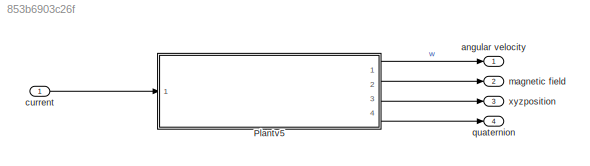
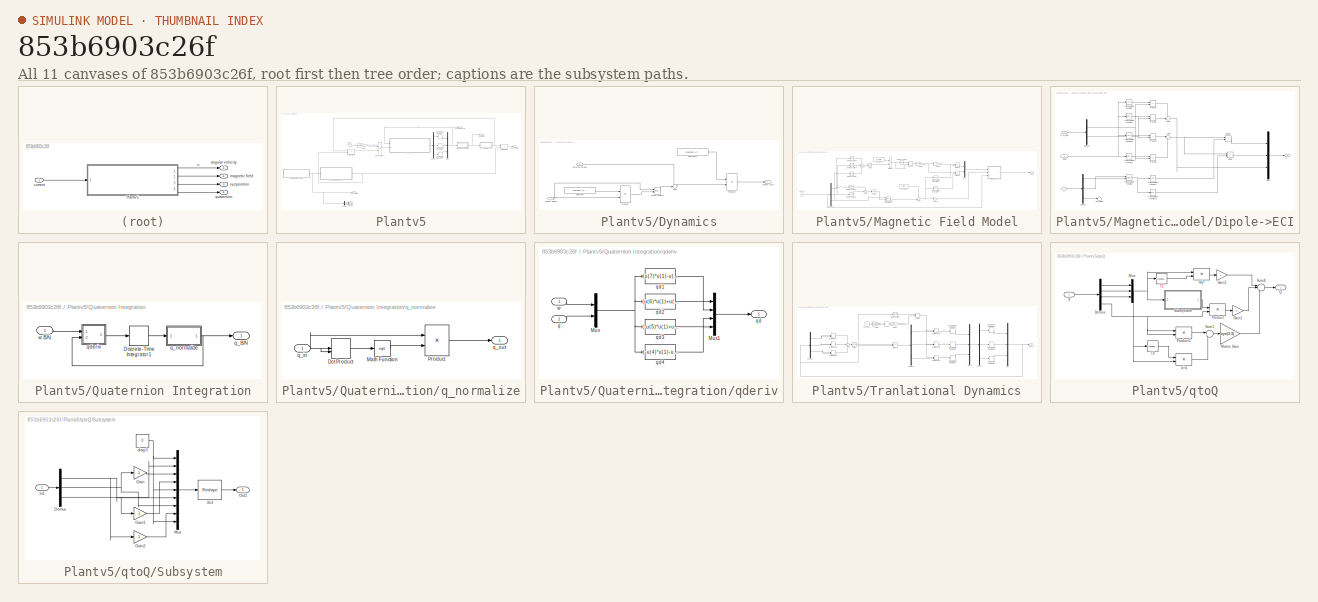
[diagram: thumbnail index - all 11 canvases of the model, root first then tree order]
MODEL slx_853b6903c26f
KIND model
CONFIG AbsTol = auto
CONFIG EnableMultiTasking = off
CONFIG FixedStep = .1
CONFIG MaxStep = 4.0
CONFIG MinStep = .001
CONFIG RelTol = 1e-6
CONFIG SampleTimeConstraint = Unconstrained
CONFIG Solver = FixedStepAuto
CONFIG SolverName = FixedStepAuto
CONFIG StartTime = 0.0
CONFIG StopTime = 6000
BLOCK [SubSystem] Plantv5
  Ports = [1, 4]
  RTWSystemCode = Inline
  RequestExecContextInheritance = off
  Tag = starshotsimv5
  TreatAsAtomicUnit = on
  Variant = off
BLOCK [Reference] Plantv5/Cross Product  REF=vrlib/Utilities/Cross Product
  Ports = [2, 1]
  SourceBlock = vrlib/Utilities/Cross Product
  SourceProductBaseCode = VR
  SourceProductName = Simulink 3D Animation
  SourceType = Cross Product
BLOCK [Demux] Plantv5/Demux
  DisplayOption = bar
  Outputs = 3
  Ports = [1, 3]
BLOCK [Demux] Plantv5/Demux4
  DisplayOption = bar
  Outputs = 3
  Ports = [1, 3]
BLOCK [DiscreteIntegrator] Plantv5/Discrete-Time Integrator
  ICPrevOutput = DiscIntNeverNeededParam
  ICPrevScaledInput = DiscIntNeverNeededParam
  InitialCondition = starshot.IC.w(1)
  InitialConditionSetting = State (most efficient)
  Ports = [1, 1]
  SampleTime = -1
BLOCK [DiscreteIntegrator] Plantv5/Discrete-Time Integrator1
  ICPrevOutput = DiscIntNeverNeededParam
  ICPrevScaledInput = DiscIntNeverNeededParam
  InitialCondition = starshot.IC.w(2)
  InitialConditionSetting = State (most efficient)
  Ports = [1, 1]
  SampleTime = -1
BLOCK [DiscreteIntegrator] Plantv5/Discrete-Time Integrator2
  ICPrevOutput = DiscIntNeverNeededParam
  ICPrevScaledInput = DiscIntNeverNeededParam
  InitialCondition = starshot.IC.w(3)
  InitialConditionSetting = State (most efficient)
  Ports = [1, 1]
  SampleTime = -1
BLOCK [SubSystem] Plantv5/Dynamics
  Ports = [2, 1]
  RequestExecContextInheritance = off
  TreatAsAtomicUnit = on
  Variant = off
BLOCK [Outport] Plantv5/Dynamics/Angular Accel
  IconDisplay = Port number
BLOCK [Inport] Plantv5/Dynamics/Angular Velocity
  IconDisplay = Port number
BLOCK [Constant] Plantv5/Dynamics/Constant
  Value = starshot.IC.massproperties.I
BLOCK [Constant] Plantv5/Dynamics/Constant1
  Value = starshot.IC.massproperties.Iinv
BLOCK [Reference] Plantv5/Dynamics/Cross Product  REF=vrlib/Utilities/Cross Product
  Ports = [2, 1]
  SourceBlock = vrlib/Utilities/Cross Product
  SourceProductBaseCode = VR
  SourceProductName = Simulink 3D Animation
  SourceType = Cross Product
BLOCK [Inport] Plantv5/Dynamics/External Torque
  IconDisplay = Port number
  Port = 2
BLOCK [Product] Plantv5/Dynamics/Product
  InputSameDT = off
  Multiplication = Matrix(*)
  OutDataTypeStr = Inherit: Inherit via internal rule
  Ports = [2, 1]
  RndMeth = Floor
  SaturateOnIntegerOverflow = off
BLOCK [Product] Plantv5/Dynamics/Product1
  InputSameDT = off
  Multiplication = Matrix(*)
  OutDataTypeStr = Inherit: Inherit via internal rule
  Ports = [2, 1]
  RndMeth = Floor
  SaturateOnIntegerOverflow = off
BLOCK [Sum] Plantv5/Dynamics/Sum
  IconShape = round
  InputSameDT = off
  Inputs = +-
  OutDataTypeStr = Inherit: Inherit via internal rule
  Ports = [2, 1]
  SaturateOnIntegerOverflow = off
BLOCK [Gain] Plantv5/Gain
  Gain = starshot.magnetorq.A*starshot.magnetorq.n
  OutDataTypeStr = Inherit: Inherit via internal rule
  ParamDataTypeStr = Inherit: Inherit via internal rule
  SaturateOnIntegerOverflow = off
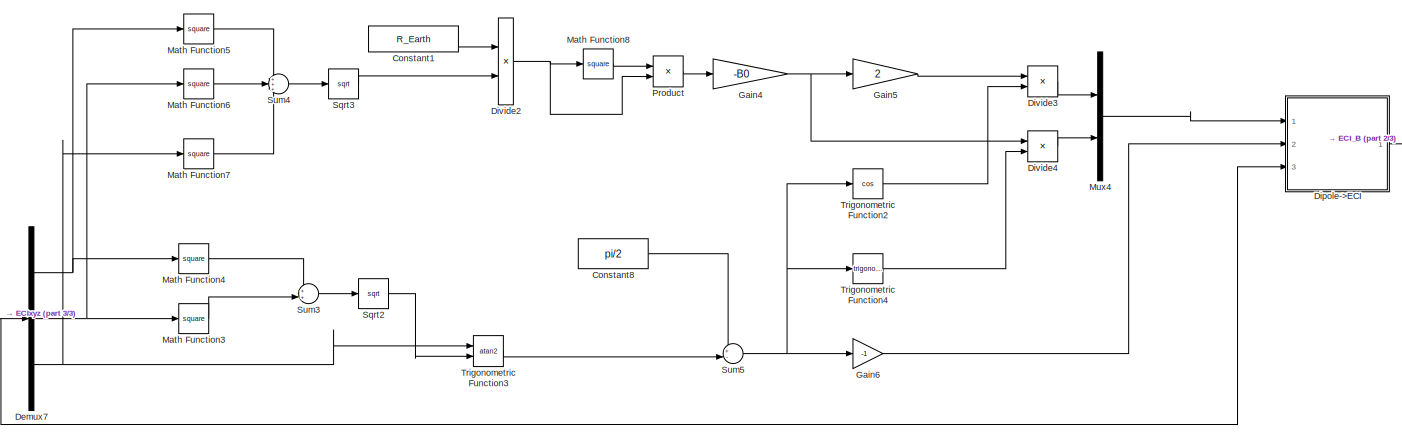
[diagram: Plantv5/Magnetic Field Model - part 1/3, most of the canvas]
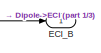
[diagram: Plantv5/Magnetic Field Model - part 2/3, middle right region]
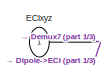
[diagram: Plantv5/Magnetic Field Model - part 3/3, bottom left region]
BLOCK [SubSystem] Plantv5/Magnetic Field Model
  Ports = [1, 1]
  RequestExecContextInheritance = off
  TreatAsAtomicUnit = on
  Variant = off
BLOCK [Constant] Plantv5/Magnetic Field Model/Constant1
  Value = R_Earth
BLOCK [Constant] Plantv5/Magnetic Field Model/Constant8
  Value = pi/2
BLOCK [Demux] Plantv5/Magnetic Field Model/Demux7
  DisplayOption = bar
  Outputs = 3
  Ports = [1, 3]
BLOCK [SubSystem] Plantv5/Magnetic Field Model/Dipole->ECI
  Ports = [3, 1]
  RequestExecContextInheritance = off
  TreatAsAtomicUnit = on
  Variant = off
BLOCK [Inport] Plantv5/Magnetic Field Model/Dipole->ECI/-theta
  IconDisplay = Port number
  Port = 2
BLOCK [Outport] Plantv5/Magnetic Field Model/Dipole->ECI/B
  IconDisplay = Port number
BLOCK [Inport] Plantv5/Magnetic Field Model/Dipole->ECI/B_r,B_theta
  IconDisplay = Port number
BLOCK [Demux] Plantv5/Magnetic Field Model/Dipole->ECI/Demux
  DisplayOption = bar
  Outputs = 3
  Ports = [1, 3]
BLOCK [Demux] Plantv5/Magnetic Field Model/Dipole->ECI/Demux8
  DisplayOption = bar
  Outputs = 2
  Ports = [1, 2]
BLOCK [Product] Plantv5/Magnetic Field Model/Dipole->ECI/Divide
  InputSameDT = off
  Inputs = **
  OutDataTypeStr = Inherit: Inherit via internal rule
  Ports = [2, 1]
  RndMeth = Floor
  SaturateOnIntegerOverflow = off
BLOCK [Product] Plantv5/Magnetic Field Model/Dipole->ECI/Divide1
  InputSameDT = off
  Inputs = **
  OutDataTypeStr = Inherit: Inherit via internal rule
  Ports = [2, 1]
  RndMeth = Floor
  SaturateOnIntegerOverflow = off
BLOCK [Mux] Plantv5/Magnetic Field Model/Dipole->ECI/Mux
  DisplayOption = bar
  Inputs = 3
  Ports = [3, 1]
BLOCK [Product] Plantv5/Magnetic Field Model/Dipole->ECI/Product1
  InputSameDT = off
  OutDataTypeStr = Inherit: Inherit via internal rule
  Ports = [2, 1]
  RndMeth = Floor
  SaturateOnIntegerOverflow = off
BLOCK [Product] Plantv5/Magnetic Field Model/Dipole->ECI/Product2
  InputSameDT = off
  OutDataTypeStr = Inherit: Inherit via internal rule
  Ports = [2, 1]
  RndMeth = Floor
  SaturateOnIntegerOverflow = off
BLOCK [Product] Plantv5/Magnetic Field Model/Dipole->ECI/Product3
  InputSameDT = off
  OutDataTypeStr = Inherit: Inherit via internal rule
  Ports = [2, 1]
  RndMeth = Floor
  SaturateOnIntegerOverflow = off
BLOCK [Product] Plantv5/Magnetic Field Model/Dipole->ECI/Product4
  InputSameDT = off
  OutDataTypeStr = Inherit: Inherit via internal rule
  Ports = [2, 1]
  RndMeth = Floor
  SaturateOnIntegerOverflow = off
BLOCK [Sum] Plantv5/Magnetic Field Model/Dipole->ECI/Sum5
  IconShape = round
  InputSameDT = off
  Inputs = +-|
  OutDataTypeStr = Inherit: Inherit via internal rule
  Ports = [2, 1]
  SaturateOnIntegerOverflow = off
BLOCK [Sum] Plantv5/Magnetic Field Model/Dipole->ECI/Sum6
  IconShape = round
  InputSameDT = off
  Inputs = |++
  OutDataTypeStr = Inherit: Inherit via internal rule
  Ports = [2, 1]
  SaturateOnIntegerOverflow = off
BLOCK [Terminator] Plantv5/Magnetic Field Model/Dipole->ECI/Terminator
BLOCK [Trigonometry] Plantv5/Magnetic Field Model/Dipole->ECI/Trigonometric Function
  Operator = atan2
  Ports = [2, 1]
BLOCK [Trigonometry] Plantv5/Magnetic Field Model/Dipole->ECI/Trigonometric Function1
  Operator = cos
  Ports = [1, 1]
BLOCK [Trigonometry] Plantv5/Magnetic Field Model/Dipole->ECI/Trigonometric Function2
  Ports = [1, 1]
BLOCK [Trigonometry] Plantv5/Magnetic Field Model/Dipole->ECI/Trigonometric Function5
  Operator = cos
  Ports = [1, 1]
BLOCK [Trigonometry] Plantv5/Magnetic Field Model/Dipole->ECI/Trigonometric Function6
  Ports = [1, 1]
BLOCK [Trigonometry] Plantv5/Magnetic Field Model/Dipole->ECI/Trigonometric Function7
  Ports = [1, 1]
BLOCK [Trigonometry] Plantv5/Magnetic Field Model/Dipole->ECI/Trigonometric Function8
  Operator = cos
  Ports = [1, 1]
BLOCK [Inport] Plantv5/Magnetic Field Model/Dipole->ECI/r
  IconDisplay = Port number
  Port = 3
BLOCK [Product] Plantv5/Magnetic Field Model/Divide2
  InputSameDT = off
  Inputs = */
  OutDataTypeStr = Inherit: Inherit via internal rule
  Ports = [2, 1]
  RndMeth = Floor
  SaturateOnIntegerOverflow = off
BLOCK [Product] Plantv5/Magnetic Field Model/Divide3
  InputSameDT = off
  Inputs = **
  OutDataTypeStr = Inherit: Inherit via internal rule
  Ports = [2, 1]
  RndMeth = Floor
  SaturateOnIntegerOverflow = off
BLOCK [Product] Plantv5/Magnetic Field Model/Divide4
  InputSameDT = off
  Inputs = **
  OutDataTypeStr = Inherit: Inherit via internal rule
  Ports = [2, 1]
  RndMeth = Floor
  SaturateOnIntegerOverflow = off
BLOCK [Outport] Plantv5/Magnetic Field Model/ECI_B
  IconDisplay = Port number
BLOCK [Inport] Plantv5/Magnetic Field Model/ECIxyz
  IconDisplay = Port number
BLOCK [Gain] Plantv5/Magnetic Field Model/Gain4
  Gain = -B0
  OutDataTypeStr = Inherit: Inherit via internal rule
  ParamDataTypeStr = Inherit: Inherit via internal rule
  SaturateOnIntegerOverflow = off
BLOCK [Gain] Plantv5/Magnetic Field Model/Gain5
  Gain = 2
  OutDataTypeStr = Inherit: Inherit via internal rule
  ParamDataTypeStr = Inherit: Inherit via internal rule
  SaturateOnIntegerOverflow = off
BLOCK [Gain] Plantv5/Magnetic Field Model/Gain6
  Gain = -1
  OutDataTypeStr = Inherit: Inherit via internal rule
  ParamDataTypeStr = Inherit: Inherit via internal rule
  SaturateOnIntegerOverflow = off
BLOCK [Math] Plantv5/Magnetic Field Model/Math Function3
  Operator = square
  Ports = [1, 1]
BLOCK [Math] Plantv5/Magnetic Field Model/Math Function4
  Operator = square
  Ports = [1, 1]
BLOCK [Math] Plantv5/Magnetic Field Model/Math Function5
  Operator = square
  Ports = [1, 1]
BLOCK [Math] Plantv5/Magnetic Field Model/Math Function6
  Operator = square
  Ports = [1, 1]
BLOCK [Math] Plantv5/Magnetic Field Model/Math Function7
  Operator = square
  Ports = [1, 1]
BLOCK [Math] Plantv5/Magnetic Field Model/Math Function8
  Operator = square
  Ports = [1, 1]
BLOCK [Mux] Plantv5/Magnetic Field Model/Mux4
  DisplayOption = bar
  Inputs = 2
  Ports = [2, 1]
BLOCK [Product] Plantv5/Magnetic Field Model/Product
  InputSameDT = off
  OutDataTypeStr = Inherit: Inherit via internal rule
  Ports = [2, 1]
  RndMeth = Floor
  SaturateOnIntegerOverflow = off
BLOCK [Sqrt] Plantv5/Magnetic Field Model/Sqrt2
BLOCK [Sqrt] Plantv5/Magnetic Field Model/Sqrt3
BLOCK [Sum] Plantv5/Magnetic Field Model/Sum3
  IconShape = round
  InputSameDT = off
  OutDataTypeStr = Inherit: Inherit via internal rule
  Ports = [2, 1]
  SaturateOnIntegerOverflow = off
BLOCK [Sum] Plantv5/Magnetic Field Model/Sum4
  IconShape = round
  InputSameDT = off
  Inputs = +++
  OutDataTypeStr = Inherit: Inherit via internal rule
  Ports = [3, 1]
  SaturateOnIntegerOverflow = off
BLOCK [Sum] Plantv5/Magnetic Field Model/Sum5
  IconShape = round
  InputSameDT = off
  Inputs = +-|
  OutDataTypeStr = Inherit: Inherit via internal rule
  Ports = [2, 1]
  SaturateOnIntegerOverflow = off
BLOCK [Trigonometry] Plantv5/Magnetic Field Model/Trigonometric Function2
  Operator = cos
  Ports = [1, 1]
BLOCK [Trigonometry] Plantv5/Magnetic Field Model/Trigonometric Function3
  Operator = atan2
  Ports = [2, 1]
BLOCK [Trigonometry] Plantv5/Magnetic Field Model/Trigonometric Function4
  Ports = [1, 1]
BLOCK [Product] Plantv5/Matrix Multiply
  InputSameDT = off
  Multiplication = Matrix(*)
  OutDataTypeStr = Inherit: Inherit via internal rule
  Ports = [2, 1]
  RndMeth = Floor
  SaturateOnIntegerOverflow = off
BLOCK [Product] Plantv5/Matrix Multiply1
  InputSameDT = off
  Multiplication = Matrix(*)
  OutDataTypeStr = Inherit: Inherit via internal rule
  Ports = [2, 1]
  RndMeth = Floor
  SaturateOnIntegerOverflow = off
BLOCK [Mux] Plantv5/Mux3
  DisplayOption = bar
  Inputs = 3
  Ports = [3, 1]
BLOCK [SubSystem] Plantv5/Quaternion Integration
  Ports = [1, 1]
  RequestExecContextInheritance = off
  Variant = off
BLOCK [DiscreteIntegrator] Plantv5/Quaternion Integration/Discrete-Time Integrator1
  ICPrevOutput = DiscIntNeverNeededParam
  ICPrevScaledInput = DiscIntNeverNeededParam
  InitialCondition = q0
  InitialConditionSetting = State (most efficient)
  Ports = [1, 1]
  SampleTime = -1
BLOCK [Outport] Plantv5/Quaternion Integration/q_B//N
  IconDisplay = Port number
BLOCK [SubSystem] Plantv5/Quaternion Integration/q_normalize
  Ports = [1, 1]
  RequestExecContextInheritance = off
  Variant = off
BLOCK [DotProduct] Plantv5/Quaternion Integration/q_normalize/Dot Product
  OutDataTypeStr = Inherit: Inherit via internal rule
BLOCK [Math] Plantv5/Quaternion Integration/q_normalize/Math Function
  Operator = sqrt
  Ports = [1, 1]
BLOCK [Product] Plantv5/Quaternion Integration/q_normalize/Product
  Inputs = */
  Ports = [2, 1]
  RndMeth = Floor
BLOCK [Inport] Plantv5/Quaternion Integration/q_normalize/q_in
  IconDisplay = Port number
  PortDimensions = 4
BLOCK [Outport] Plantv5/Quaternion Integration/q_normalize/q_out
  IconDisplay = Port number
BLOCK [SubSystem] Plantv5/Quaternion Integration/qderiv
  Ports = [2, 1]
  RequestExecContextInheritance = off
  Variant = off
BLOCK [Mux] Plantv5/Quaternion Integration/qderiv/Mux
  DisplayOption = bar
  Inputs = 2
  Ports = [2, 1]
BLOCK [Mux] Plantv5/Quaternion Integration/qderiv/Mux1
  DisplayOption = bar
  Ports = [4, 1]
BLOCK [Inport] Plantv5/Quaternion Integration/qderiv/q
  IconDisplay = Port number
  Port = 2
BLOCK [Outport] Plantv5/Quaternion Integration/qderiv/qd
  IconDisplay = Port number
BLOCK [Fcn] Plantv5/Quaternion Integration/qderiv/qd1
  Expr = (u(7)*u(1)-u(6)*u(2)+u(5)*u(3))/2
BLOCK [Fcn] Plantv5/Quaternion Integration/qderiv/qd2
  Expr = (u(6)*u(1)+u(7)*u(2)-u(4)*u(3))/2
BLOCK [Fcn] Plantv5/Quaternion Integration/qderiv/qd3
  Expr = (-u(5)*u(1)+u(4)*u(2)+u(7)*u(3))/2
BLOCK [Fcn] Plantv5/Quaternion Integration/qderiv/qd4
  Expr = (-u(4)*u(1)-u(5)*u(2)-u(6)*u(3))/2
BLOCK [Inport] Plantv5/Quaternion Integration/qderiv/w
  IconDisplay = Port number
BLOCK [Inport] Plantv5/Quaternion Integration/w B//N
  IconDisplay = Port number
BLOCK [Scope] Plantv5/Scope
  NumInputPorts = 3
  Ports = [3]
  ScopeSpecificationString = Simulink.scopes.TimeScopeBlockCfg('CurrentConfiguration', extmgr.ConfigurationSet(extmgr.Configuration('Core','General UI',true),extmgr.Configuration('Core','Source UI',true),extmgr.Configuration('Sources','WiredSimulink',true,'DataLoggingVariableName','ScopeData1'),extmgr.Configuration('Visuals','Time Domain',true,'SerializedDisplays',{struct('MinYLimReal','6403135.10671','MaxYLimReal','12371784....<+2772ch>
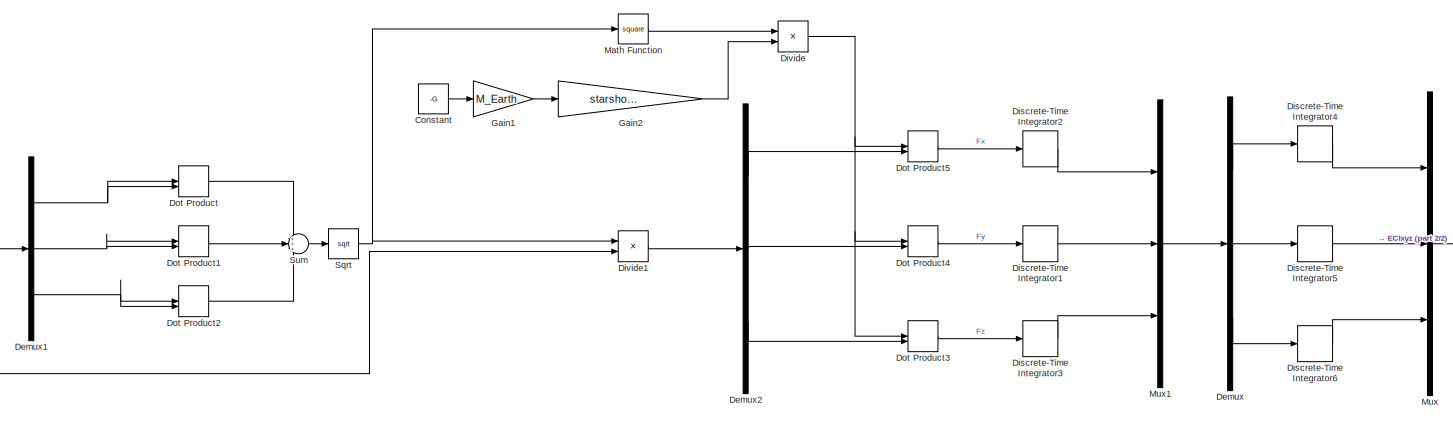
[diagram: Plantv5/Tranlational Dynamics - part 1/2, most of the canvas]
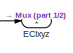
[diagram: Plantv5/Tranlational Dynamics - part 2/2, middle right region]
BLOCK [SubSystem] Plantv5/Tranlational Dynamics
  Ports = [0, 1]
  RequestExecContextInheritance = off
  TreatAsAtomicUnit = on
  Variant = off
BLOCK [Constant] Plantv5/Tranlational Dynamics/Constant
  Value = -G
BLOCK [Demux] Plantv5/Tranlational Dynamics/Demux
  DisplayOption = bar
  Outputs = 3
  Ports = [1, 3]
BLOCK [Demux] Plantv5/Tranlational Dynamics/Demux1
  DisplayOption = bar
  Outputs = 3
  Ports = [1, 3]
BLOCK [Demux] Plantv5/Tranlational Dynamics/Demux2
  DisplayOption = bar
  Outputs = 3
  Ports = [1, 3]
BLOCK [DiscreteIntegrator] Plantv5/Tranlational Dynamics/Discrete-Time Integrator1
  ICPrevOutput = DiscIntNeverNeededParam
  ICPrevScaledInput = DiscIntNeverNeededParam
  InitialCondition = starshot.IC.ydot
  InitialConditionSetting = State (most efficient)
  Ports = [1, 1]
  SampleTime = -1
BLOCK [DiscreteIntegrator] Plantv5/Tranlational Dynamics/Discrete-Time Integrator2
  ICPrevOutput = DiscIntNeverNeededParam
  ICPrevScaledInput = DiscIntNeverNeededParam
  InitialCondition = starshot.IC.xdot
  InitialConditionSetting = State (most efficient)
  Ports = [1, 1]
  SampleTime = -1
BLOCK [DiscreteIntegrator] Plantv5/Tranlational Dynamics/Discrete-Time Integrator3
  ICPrevOutput = DiscIntNeverNeededParam
  ICPrevScaledInput = DiscIntNeverNeededParam
  InitialCondition = starshot.IC.zdot
  InitialConditionSetting = State (most efficient)
  Ports = [1, 1]
  SampleTime = -1
BLOCK [DiscreteIntegrator] Plantv5/Tranlational Dynamics/Discrete-Time Integrator4
  ICPrevOutput = DiscIntNeverNeededParam
  ICPrevScaledInput = DiscIntNeverNeededParam
  InitialCondition = starshot.IC.x
  InitialConditionSetting = State (most efficient)
  Ports = [1, 1]
  SampleTime = -1
BLOCK [DiscreteIntegrator] Plantv5/Tranlational Dynamics/Discrete-Time Integrator5
  ICPrevOutput = DiscIntNeverNeededParam
  ICPrevScaledInput = DiscIntNeverNeededParam
  InitialCondition = starshot.IC.y
  InitialConditionSetting = State (most efficient)
  Ports = [1, 1]
  SampleTime = -1
BLOCK [DiscreteIntegrator] Plantv5/Tranlational Dynamics/Discrete-Time Integrator6
  ICPrevOutput = DiscIntNeverNeededParam
  ICPrevScaledInput = DiscIntNeverNeededParam
  InitialCondition = starshot.IC.z
  InitialConditionSetting = State (most efficient)
  Ports = [1, 1]
  SampleTime = -1
BLOCK [Product] Plantv5/Tranlational Dynamics/Divide
  InputSameDT = off
  Inputs = /*
  OutDataTypeStr = Inherit: Inherit via internal rule
  Ports = [2, 1]
  RndMeth = Floor
  SaturateOnIntegerOverflow = off
BLOCK [Product] Plantv5/Tranlational Dynamics/Divide1
  InputSameDT = off
  Inputs = /*
  OutDataTypeStr = Inherit: Inherit via internal rule
  Ports = [2, 1]
  RndMeth = Floor
  SaturateOnIntegerOverflow = off
BLOCK [DotProduct] Plantv5/Tranlational Dynamics/Dot Product
  OutDataTypeStr = Inherit: Inherit via internal rule
BLOCK [DotProduct] Plantv5/Tranlational Dynamics/Dot Product1
  OutDataTypeStr = Inherit: Inherit via internal rule
BLOCK [DotProduct] Plantv5/Tranlational Dynamics/Dot Product2
  OutDataTypeStr = Inherit: Inherit via internal rule
BLOCK [DotProduct] Plantv5/Tranlational Dynamics/Dot Product3
  OutDataTypeStr = Inherit: Inherit via internal rule
BLOCK [DotProduct] Plantv5/Tranlational Dynamics/Dot Product4
  OutDataTypeStr = Inherit: Inherit via internal rule
BLOCK [DotProduct] Plantv5/Tranlational Dynamics/Dot Product5
  OutDataTypeStr = Inherit: Inherit via internal rule
BLOCK [Outport] Plantv5/Tranlational Dynamics/ECIxyz
  IconDisplay = Port number
BLOCK [Gain] Plantv5/Tranlational Dynamics/Gain1
  Gain = M_Earth
  OutDataTypeStr = Inherit: Inherit via internal rule
  ParamDataTypeStr = Inherit: Inherit via internal rule
  SaturateOnIntegerOverflow = off
BLOCK [Gain] Plantv5/Tranlational Dynamics/Gain2
  Gain = starshot.IC.massproperties.m
  OutDataTypeStr = Inherit: Inherit via internal rule
  ParamDataTypeStr = Inherit: Inherit via internal rule
  SaturateOnIntegerOverflow = off
BLOCK [Math] Plantv5/Tranlational Dynamics/Math Function
  Operator = square
  Ports = [1, 1]
BLOCK [Mux] Plantv5/Tranlational Dynamics/Mux
  DisplayOption = bar
  Inputs = 3
  Ports = [3, 1]
BLOCK [Mux] Plantv5/Tranlational Dynamics/Mux1
  DisplayOption = bar
  Inputs = 3
  Ports = [3, 1]
BLOCK [Sqrt] Plantv5/Tranlational Dynamics/Sqrt
BLOCK [Sum] Plantv5/Tranlational Dynamics/Sum
  IconShape = round
  InputSameDT = off
  Inputs = +++
  OutDataTypeStr = Inherit: Inherit via internal rule
  Ports = [3, 1]
  SaturateOnIntegerOverflow = off
BLOCK [Outport] Plantv5/angular velocity
  IconDisplay = Port number
BLOCK [Inport] Plantv5/current
  IconDisplay = Port number
BLOCK [Outport] Plantv5/magnetic field
  IconDisplay = Port number
  Port = 2
BLOCK [SubSystem] Plantv5/qtoQ
  Ports = [1, 1]
  RequestExecContextInheritance = off
  TreatAsAtomicUnit = on
  Variant = off
BLOCK [Demux] Plantv5/qtoQ/Demux
  Ports = [1, 4]
BLOCK [Gain] Plantv5/qtoQ/Gain1
  Gain = 2
BLOCK [Gain] Plantv5/qtoQ/Gain2
  Gain = 2
BLOCK [Gain] Plantv5/qtoQ/Matrix Gain
  Gain = eye(3,3)
BLOCK [Mux] Plantv5/qtoQ/Mux
  DisplayOption = bar
  Inputs = 3
  Ports = [3, 1]
BLOCK [Product] Plantv5/qtoQ/Product
  Ports = [2, 1]
  RndMeth = Floor
BLOCK [Product] Plantv5/qtoQ/Product1
  Ports = [2, 1]
  RndMeth = Floor
BLOCK [Outport] Plantv5/qtoQ/Q
  IconDisplay = Port number
BLOCK [SubSystem] Plantv5/qtoQ/Subsystem
  Ports = [1, 1]
  RequestExecContextInheritance = off
  Variant = off
BLOCK [Reshape] Plantv5/qtoQ/Subsystem/3x3
  OutputDimensionality = Customize
  OutputDimensions = [3,3]
  Ports = [1, 1]
BLOCK [Demux] Plantv5/qtoQ/Subsystem/Demux
  Outputs = 3
  Ports = [1, 3]
BLOCK [Gain] Plantv5/qtoQ/Subsystem/Gain
  Gain = -1
BLOCK [Gain] Plantv5/qtoQ/Subsystem/Gain1
  Gain = -1
BLOCK [Gain] Plantv5/qtoQ/Subsystem/Gain2
  Gain = -1
BLOCK [Inport] Plantv5/qtoQ/Subsystem/In1
  IconDisplay = Port number
BLOCK [Mux] Plantv5/qtoQ/Subsystem/Mux
  DisplayOption = bar
  Inputs = 9
  Ports = [9, 1]
BLOCK [Outport] Plantv5/qtoQ/Subsystem/Out1
  IconDisplay = Port number
BLOCK [Constant] Plantv5/qtoQ/Subsystem/diag 0 
  Value = 0
BLOCK [Sum] Plantv5/qtoQ/Sum1
  IconShape = round
  Inputs = |+-
  Ports = [2, 1]
BLOCK [Sum] Plantv5/qtoQ/Sum8
  IconShape = round
  Inputs = |+-+
  Ports = [3, 1]
BLOCK [Math] Plantv5/qtoQ/T1
  Operator = transpose
  Ports = [1, 1]
BLOCK [Math] Plantv5/qtoQ/T2
  Operator = transpose
  Ports = [1, 1]
BLOCK [Inport] Plantv5/qtoQ/q
  IconDisplay = Port number
BLOCK [Product] Plantv5/qtoQ/qTq
  Multiplication = Matrix(*)
  Ports = [2, 1]
  RndMeth = Floor
BLOCK [Product] Plantv5/qtoQ/qqT
  Multiplication = Matrix(*)
  Ports = [2, 1]
  RndMeth = Floor
BLOCK [Outport] Plantv5/quaternion
  IconDisplay = Port number
  Port = 4
BLOCK [Outport] Plantv5/xyzposition
  IconDisplay = Port number
  Port = 3
BLOCK [Outport] angular velocity
  IconDisplay = Port number
  OutDataTypeStr = double
  PortDimensions = 3
  SampleTime = [0.10000000000000001 0]
  SignalType = real
  VarSizeSig = No
BLOCK [Inport] current
  IconDisplay = Port number
  Interpolate = off
  OutDataTypeStr = double
  PortDimensions = 3
  SampleTime = [0.10000000000000001 0]
  SignalType = real
  VarSizeSig = No
BLOCK [Outport] magnetic field
  IconDisplay = Port number
  OutDataTypeStr = double
  Port = 2
  PortDimensions = 3
  SampleTime = [0.10000000000000001 0]
  SignalType = real
  VarSizeSig = No
BLOCK [Outport] quaternion
  IconDisplay = Port number
  OutDataTypeStr = double
  Port = 4
  PortDimensions = 4
  SampleTime = [0.10000000000000001 0]
  SignalType = real
  VarSizeSig = No
BLOCK [Outport] xyzposition
  IconDisplay = Port number
  OutDataTypeStr = double
  Port = 3
  PortDimensions = 3
  SampleTime = [0.10000000000000001 0]
  SignalType = real
  VarSizeSig = No
LINE Plantv5/Cross Product:1 -> Plantv5/Dynamics:2
LINE Plantv5/Demux4:1 -> Plantv5/Discrete-Time Integrator:1
LINE Plantv5/Demux4:2 -> Plantv5/Discrete-Time Integrator1:1
LINE Plantv5/Demux4:3 -> Plantv5/Discrete-Time Integrator2:1
LINE Plantv5/Demux:1 -> Plantv5/Scope:1
LINE Plantv5/Demux:2 -> Plantv5/Scope:2
LINE Plantv5/Demux:3 -> Plantv5/Scope:3
LINE Plantv5/Discrete-Time Integrator1:1 -> Plantv5/Mux3:2
LINE Plantv5/Discrete-Time Integrator2:1 -> Plantv5/Mux3:3
LINE Plantv5/Discrete-Time Integrator:1 -> Plantv5/Mux3:1
NET Plantv5/Dynamics/Angular Velocity:1 -> Plantv5/Dynamics/Cross Product:1, Plantv5/Dynamics/Product:2
LINE Plantv5/Dynamics/Constant1:1 -> Plantv5/Dynamics/Product1:1
LINE Plantv5/Dynamics/Constant:1 -> Plantv5/Dynamics/Product:1
LINE Plantv5/Dynamics/Cross Product:1 -> Plantv5/Dynamics/Sum:2
LINE Plantv5/Dynamics/External Torque:1 -> Plantv5/Dynamics/Sum:1
LINE Plantv5/Dynamics/Product1:1 -> Plantv5/Dynamics/Angular Accel:1
LINE Plantv5/Dynamics/Product:1 -> Plantv5/Dynamics/Cross Product:2
LINE Plantv5/Dynamics/Sum:1 -> Plantv5/Dynamics/Product1:2
LINE Plantv5/Dynamics:1 -> Plantv5/Demux4:1
LINE Plantv5/Gain:1 -> Plantv5/Cross Product:1
LINE Plantv5/Magnetic Field Model/Constant1:1 -> Plantv5/Magnetic Field Model/Divide2:1
LINE Plantv5/Magnetic Field Model/Constant8:1 -> Plantv5/Magnetic Field Model/Sum5:1
NET Plantv5/Magnetic Field Model/Demux7:1 -> Plantv5/Magnetic Field Model/Math Function4:1, Plantv5/Magnetic Field Model/Math Function5:1
NET Plantv5/Magnetic Field Model/Demux7:2 -> Plantv5/Magnetic Field Model/Math Function3:1, Plantv5/Magnetic Field Model/Math Function6:1
NET Plantv5/Magnetic Field Model/Demux7:3 -> Plantv5/Magnetic Field Model/Math Function7:1, Plantv5/Magnetic Field Model/Trigonometric Function3:1
NET Plantv5/Magnetic Field Model/Dipole->ECI/-theta:1 -> Plantv5/Magnetic Field Model/Dipole->ECI/Trigonometric Function5:1, Plantv5/Magnetic Field Model/Dipole->ECI/Trigonometric Function6:1, Plantv5/Magnetic Field Model/Dipole->ECI/Trigonometric Function7:1, Plantv5/Magnetic Field Model/Dipole->ECI/Trigonometric Function8:1
LINE Plantv5/Magnetic Field Model/Dipole->ECI/B_r,B_theta:1 -> Plantv5/Magnetic Field Model/Dipole->ECI/Demux8:1
NET Plantv5/Magnetic Field Model/Dipole->ECI/Demux8:1 -> Plantv5/Magnetic Field Model/Dipole->ECI/Product1:2, Plantv5/Magnetic Field Model/Dipole->ECI/Product3:2
NET Plantv5/Magnetic Field Model/Dipole->ECI/Demux8:2 -> Plantv5/Magnetic Field Model/Dipole->ECI/Product2:2, Plantv5/Magnetic Field Model/Dipole->ECI/Product4:2
LINE Plantv5/Magnetic Field Model/Dipole->ECI/Demux:1 -> Plantv5/Magnetic Field Model/Dipole->ECI/Trigonometric Function:2
LINE Plantv5/Magnetic Field Model/Dipole->ECI/Demux:2 -> Plantv5/Magnetic Field Model/Dipole->ECI/Trigonometric Function:1
LINE Plantv5/Magnetic Field Model/Dipole->ECI/Demux:3 -> Plantv5/Magnetic Field Model/Dipole->ECI/Terminator:1
LINE Plantv5/Magnetic Field Model/Dipole->ECI/Divide1:1 -> Plantv5/Magnetic Field Model/Dipole->ECI/Mux:1
LINE Plantv5/Magnetic Field Model/Dipole->ECI/Divide:1 -> Plantv5/Magnetic Field Model/Dipole->ECI/Mux:2
LINE Plantv5/Magnetic Field Model/Dipole->ECI/Mux:1 -> Plantv5/Magnetic Field Model/Dipole->ECI/B:1
LINE Plantv5/Magnetic Field Model/Dipole->ECI/Product1:1 -> Plantv5/Magnetic Field Model/Dipole->ECI/Sum5:1
LINE Plantv5/Magnetic Field Model/Dipole->ECI/Product2:1 -> Plantv5/Magnetic Field Model/Dipole->ECI/Sum5:2
LINE Plantv5/Magnetic Field Model/Dipole->ECI/Product3:1 -> Plantv5/Magnetic Field Model/Dipole->ECI/Sum6:2
LINE Plantv5/Magnetic Field Model/Dipole->ECI/Product4:1 -> Plantv5/Magnetic Field Model/Dipole->ECI/Sum6:1
LINE Plantv5/Magnetic Field Model/Dipole->ECI/Sum5:1 -> Plantv5/Magnetic Field Model/Dipole->ECI/Mux:3
NET Plantv5/Magnetic Field Model/Dipole->ECI/Sum6:1 -> Plantv5/Magnetic Field Model/Dipole->ECI/Divide1:1, Plantv5/Magnetic Field Model/Dipole->ECI/Divide:1
LINE Plantv5/Magnetic Field Model/Dipole->ECI/Trigonometric Function1:1 -> Plantv5/Magnetic Field Model/Dipole->ECI/Divide1:2
LINE Plantv5/Magnetic Field Model/Dipole->ECI/Trigonometric Function2:1 -> Plantv5/Magnetic Field Model/Dipole->ECI/Divide:2
LINE Plantv5/Magnetic Field Model/Dipole->ECI/Trigonometric Function5:1 -> Plantv5/Magnetic Field Model/Dipole->ECI/Product1:1
LINE Plantv5/Magnetic Field Model/Dipole->ECI/Trigonometric Function6:1 -> Plantv5/Magnetic Field Model/Dipole->ECI/Product2:1
LINE Plantv5/Magnetic Field Model/Dipole->ECI/Trigonometric Function7:1 -> Plantv5/Magnetic Field Model/Dipole->ECI/Product3:1
LINE Plantv5/Magnetic Field Model/Dipole->ECI/Trigonometric Function8:1 -> Plantv5/Magnetic Field Model/Dipole->ECI/Product4:1
NET Plantv5/Magnetic Field Model/Dipole->ECI/Trigonometric Function:1 -> Plantv5/Magnetic Field Model/Dipole->ECI/Trigonometric Function1:1, Plantv5/Magnetic Field Model/Dipole->ECI/Trigonometric Function2:1
LINE Plantv5/Magnetic Field Model/Dipole->ECI/r:1 -> Plantv5/Magnetic Field Model/Dipole->ECI/Demux:1
LINE Plantv5/Magnetic Field Model/Dipole->ECI:1 -> Plantv5/Magnetic Field Model/ECI_B:1
NET Plantv5/Magnetic Field Model/Divide2:1 -> Plantv5/Magnetic Field Model/Math Function8:1, Plantv5/Magnetic Field Model/Product:2
LINE Plantv5/Magnetic Field Model/Divide3:1 -> Plantv5/Magnetic Field Model/Mux4:1
LINE Plantv5/Magnetic Field Model/Divide4:1 -> Plantv5/Magnetic Field Model/Mux4:2
NET Plantv5/Magnetic Field Model/ECIxyz:1 -> Plantv5/Magnetic Field Model/Demux7:1, Plantv5/Magnetic Field Model/Dipole->ECI:3
NET Plantv5/Magnetic Field Model/Gain4:1 -> Plantv5/Magnetic Field Model/Divide4:1, Plantv5/Magnetic Field Model/Gain5:1
LINE Plantv5/Magnetic Field Model/Gain5:1 -> Plantv5/Magnetic Field Model/Divide3:1
LINE Plantv5/Magnetic Field Model/Gain6:1 -> Plantv5/Magnetic Field Model/Dipole->ECI:2
LINE Plantv5/Magnetic Field Model/Math Function3:1 -> Plantv5/Magnetic Field Model/Sum3:2
LINE Plantv5/Magnetic Field Model/Math Function4:1 -> Plantv5/Magnetic Field Model/Sum3:1
LINE Plantv5/Magnetic Field Model/Math Function5:1 -> Plantv5/Magnetic Field Model/Sum4:1
LINE Plantv5/Magnetic Field Model/Math Function6:1 -> Plantv5/Magnetic Field Model/Sum4:2
LINE Plantv5/Magnetic Field Model/Math Function7:1 -> Plantv5/Magnetic Field Model/Sum4:3
LINE Plantv5/Magnetic Field Model/Math Function8:1 -> Plantv5/Magnetic Field Model/Product:1
LINE Plantv5/Magnetic Field Model/Mux4:1 -> Plantv5/Magnetic Field Model/Dipole->ECI:1
LINE Plantv5/Magnetic Field Model/Product:1 -> Plantv5/Magnetic Field Model/Gain4:1
LINE Plantv5/Magnetic Field Model/Sqrt2:1 -> Plantv5/Magnetic Field Model/Trigonometric Function3:2
LINE Plantv5/Magnetic Field Model/Sqrt3:1 -> Plantv5/Magnetic Field Model/Divide2:2
LINE Plantv5/Magnetic Field Model/Sum3:1 -> Plantv5/Magnetic Field Model/Sqrt2:1
LINE Plantv5/Magnetic Field Model/Sum4:1 -> Plantv5/Magnetic Field Model/Sqrt3:1
NET Plantv5/Magnetic Field Model/Sum5:1 -> Plantv5/Magnetic Field Model/Gain6:1, Plantv5/Magnetic Field Model/Trigonometric Function2:1, Plantv5/Magnetic Field Model/Trigonometric Function4:1
LINE Plantv5/Magnetic Field Model/Trigonometric Function2:1 -> Plantv5/Magnetic Field Model/Divide3:2
LINE Plantv5/Magnetic Field Model/Trigonometric Function3:1 -> Plantv5/Magnetic Field Model/Sum5:2
LINE Plantv5/Magnetic Field Model/Trigonometric Function4:1 -> Plantv5/Magnetic Field Model/Divide4:2
NET Plantv5/Magnetic Field Model:1 -> Plantv5/Matrix Multiply1:2, Plantv5/Matrix Multiply:2
LINE Plantv5/Matrix Multiply1:1 -> Plantv5/Cross Product:2
LINE Plantv5/Matrix Multiply:1 -> Plantv5/magnetic field:1
NET Plantv5/Mux3:1 -> Plantv5/Dynamics:1, Plantv5/Quaternion Integration:1, Plantv5/angular velocity:1
LINE Plantv5/Quaternion Integration/Discrete-Time Integrator1:1 -> Plantv5/Quaternion Integration/q_normalize:1
LINE Plantv5/Quaternion Integration/q_normalize/Dot Product:1 -> Plantv5/Quaternion Integration/q_normalize/Math Function:1
LINE Plantv5/Quaternion Integration/q_normalize/Math Function:1 -> Plantv5/Quaternion Integration/q_normalize/Product:2
LINE Plantv5/Quaternion Integration/q_normalize/Product:1 -> Plantv5/Quaternion Integration/q_normalize/q_out:1
NET Plantv5/Quaternion Integration/q_normalize/q_in:1 -> Plantv5/Quaternion Integration/q_normalize/Dot Product:1, Plantv5/Quaternion Integration/q_normalize/Dot Product:2, Plantv5/Quaternion Integration/q_normalize/Product:1
NET Plantv5/Quaternion Integration/q_normalize:1 -> Plantv5/Quaternion Integration/q_B//N:1, Plantv5/Quaternion Integration/qderiv:2
LINE Plantv5/Quaternion Integration/qderiv/Mux1:1 -> Plantv5/Quaternion Integration/qderiv/qd:1
NET Plantv5/Quaternion Integration/qderiv/Mux:1 -> Plantv5/Quaternion Integration/qderiv/qd1:1, Plantv5/Quaternion Integration/qderiv/qd2:1, Plantv5/Quaternion Integration/qderiv/qd3:1, Plantv5/Quaternion Integration/qderiv/qd4:1
LINE Plantv5/Quaternion Integration/qderiv/q:1 -> Plantv5/Quaternion Integration/qderiv/Mux:2
LINE Plantv5/Quaternion Integration/qderiv/qd1:1 -> Plantv5/Quaternion Integration/qderiv/Mux1:1
LINE Plantv5/Quaternion Integration/qderiv/qd2:1 -> Plantv5/Quaternion Integration/qderiv/Mux1:2
LINE Plantv5/Quaternion Integration/qderiv/qd3:1 -> Plantv5/Quaternion Integration/qderiv/Mux1:3
LINE Plantv5/Quaternion Integration/qderiv/qd4:1 -> Plantv5/Quaternion Integration/qderiv/Mux1:4
LINE Plantv5/Quaternion Integration/qderiv/w:1 -> Plantv5/Quaternion Integration/qderiv/Mux:1
LINE Plantv5/Quaternion Integration/qderiv:1 -> Plantv5/Quaternion Integration/Discrete-Time Integrator1:1
LINE Plantv5/Quaternion Integration/w B//N:1 -> Plantv5/Quaternion Integration/qderiv:1
NET Plantv5/Quaternion Integration:1 -> Plantv5/qtoQ:1, Plantv5/quaternion:1
LINE Plantv5/Tranlational Dynamics/Constant:1 -> Plantv5/Tranlational Dynamics/Gain1:1
NET Plantv5/Tranlational Dynamics/Demux1:1 -> Plantv5/Tranlational Dynamics/Dot Product:1, Plantv5/Tranlational Dynamics/Dot Product:2
NET Plantv5/Tranlational Dynamics/Demux1:2 -> Plantv5/Tranlational Dynamics/Dot Product1:1, Plantv5/Tranlational Dynamics/Dot Product1:2
NET Plantv5/Tranlational Dynamics/Demux1:3 -> Plantv5/Tranlational Dynamics/Dot Product2:1, Plantv5/Tranlational Dynamics/Dot Product2:2
LINE Plantv5/Tranlational Dynamics/Demux2:1 -> Plantv5/Tranlational Dynamics/Dot Product5:2
LINE Plantv5/Tranlational Dynamics/Demux2:2 -> Plantv5/Tranlational Dynamics/Dot Product4:2
LINE Plantv5/Tranlational Dynamics/Demux2:3 -> Plantv5/Tranlational Dynamics/Dot Product3:2
LINE Plantv5/Tranlational Dynamics/Demux:1 -> Plantv5/Tranlational Dynamics/Discrete-Time Integrator4:1
LINE Plantv5/Tranlational Dynamics/Demux:2 -> Plantv5/Tranlational Dynamics/Discrete-Time Integrator5:1
LINE Plantv5/Tranlational Dynamics/Demux:3 -> Plantv5/Tranlational Dynamics/Discrete-Time Integrator6:1
LINE Plantv5/Tranlational Dynamics/Discrete-Time Integrator1:1 -> Plantv5/Tranlational Dynamics/Mux1:2
LINE Plantv5/Tranlational Dynamics/Discrete-Time Integrator2:1 -> Plantv5/Tranlational Dynamics/Mux1:1
LINE Plantv5/Tranlational Dynamics/Discrete-Time Integrator3:1 -> Plantv5/Tranlational Dynamics/Mux1:3
LINE Plantv5/Tranlational Dynamics/Discrete-Time Integrator4:1 -> Plantv5/Tranlational Dynamics/Mux:1
LINE Plantv5/Tranlational Dynamics/Discrete-Time Integrator5:1 -> Plantv5/Tranlational Dynamics/Mux:2
LINE Plantv5/Tranlational Dynamics/Discrete-Time Integrator6:1 -> Plantv5/Tranlational Dynamics/Mux:3
LINE Plantv5/Tranlational Dynamics/Divide1:1 -> Plantv5/Tranlational Dynamics/Demux2:1
NET Plantv5/Tranlational Dynamics/Divide:1 -> Plantv5/Tranlational Dynamics/Dot Product3:1, Plantv5/Tranlational Dynamics/Dot Product4:1, Plantv5/Tranlational Dynamics/Dot Product5:1
LINE Plantv5/Tranlational Dynamics/Dot Product1:1 -> Plantv5/Tranlational Dynamics/Sum:2
LINE Plantv5/Tranlational Dynamics/Dot Product2:1 -> Plantv5/Tranlational Dynamics/Sum:3
LINE Plantv5/Tranlational Dynamics/Dot Product3:1 -> Plantv5/Tranlational Dynamics/Discrete-Time Integrator3:1
LINE Plantv5/Tranlational Dynamics/Dot Product4:1 -> Plantv5/Tranlational Dynamics/Discrete-Time Integrator1:1
LINE Plantv5/Tranlational Dynamics/Dot Product5:1 -> Plantv5/Tranlational Dynamics/Discrete-Time Integrator2:1
LINE Plantv5/Tranlational Dynamics/Dot Product:1 -> Plantv5/Tranlational Dynamics/Sum:1
LINE Plantv5/Tranlational Dynamics/Gain1:1 -> Plantv5/Tranlational Dynamics/Gain2:1
LINE Plantv5/Tranlational Dynamics/Gain2:1 -> Plantv5/Tranlational Dynamics/Divide:2
LINE Plantv5/Tranlational Dynamics/Math Function:1 -> Plantv5/Tranlational Dynamics/Divide:1
LINE Plantv5/Tranlational Dynamics/Mux1:1 -> Plantv5/Tranlational Dynamics/Demux:1
NET Plantv5/Tranlational Dynamics/Mux:1 -> Plantv5/Tranlational Dynamics/Demux1:1, Plantv5/Tranlational Dynamics/Divide1:2, Plantv5/Tranlational Dynamics/ECIxyz:1
NET Plantv5/Tranlational Dynamics/Sqrt:1 -> Plantv5/Tranlational Dynamics/Divide1:1, Plantv5/Tranlational Dynamics/Math Function:1
LINE Plantv5/Tranlational Dynamics/Sum:1 -> Plantv5/Tranlational Dynamics/Sqrt:1
NET Plantv5/Tranlational Dynamics:1 -> Plantv5/Demux:1, Plantv5/Magnetic Field Model:1, Plantv5/xyzposition:1
LINE Plantv5/current:1 -> Plantv5/Gain:1
LINE Plantv5/qtoQ/Demux:1 -> Plantv5/qtoQ/Mux:1
LINE Plantv5/qtoQ/Demux:2 -> Plantv5/qtoQ/Mux:2
LINE Plantv5/qtoQ/Demux:3 -> Plantv5/qtoQ/Mux:3
NET Plantv5/qtoQ/Demux:4 -> Plantv5/qtoQ/Product1:1, Plantv5/qtoQ/Product1:2, Plantv5/qtoQ/Product:2
LINE Plantv5/qtoQ/Gain1:1 -> Plantv5/qtoQ/Sum8:2
LINE Plantv5/qtoQ/Gain2:1 -> Plantv5/qtoQ/Sum8:1
LINE Plantv5/qtoQ/Matrix Gain:1 -> Plantv5/qtoQ/Sum8:3
NET Plantv5/qtoQ/Mux:1 -> Plantv5/qtoQ/Subsystem:1, Plantv5/qtoQ/T1:1, Plantv5/qtoQ/T2:1, Plantv5/qtoQ/qTq:2, Plantv5/qtoQ/qqT:1
LINE Plantv5/qtoQ/Product1:1 -> Plantv5/qtoQ/Sum1:1
LINE Plantv5/qtoQ/Product:1 -> Plantv5/qtoQ/Gain1:1
LINE Plantv5/qtoQ/Subsystem/3x3:1 -> Plantv5/qtoQ/Subsystem/Out1:1
NET Plantv5/qtoQ/Subsystem/Demux:1 -> Plantv5/qtoQ/Subsystem/Gain2:1, Plantv5/qtoQ/Subsystem/Mux:6
NET Plantv5/qtoQ/Subsystem/Demux:2 -> Plantv5/qtoQ/Subsystem/Gain:1, Plantv5/qtoQ/Subsystem/Mux:7
NET Plantv5/qtoQ/Subsystem/Demux:3 -> Plantv5/qtoQ/Subsystem/Gain1:1, Plantv5/qtoQ/Subsystem/Mux:2
LINE Plantv5/qtoQ/Subsystem/Gain1:1 -> Plantv5/qtoQ/Subsystem/Mux:4
LINE Plantv5/qtoQ/Subsystem/Gain2:1 -> Plantv5/qtoQ/Subsystem/Mux:8
LINE Plantv5/qtoQ/Subsystem/Gain:1 -> Plantv5/qtoQ/Subsystem/Mux:3
LINE Plantv5/qtoQ/Subsystem/In1:1 -> Plantv5/qtoQ/Subsystem/Demux:1
LINE Plantv5/qtoQ/Subsystem/Mux:1 -> Plantv5/qtoQ/Subsystem/3x3:1
NET Plantv5/qtoQ/Subsystem/diag 0 :1 -> Plantv5/qtoQ/Subsystem/Mux:1, Plantv5/qtoQ/Subsystem/Mux:5, Plantv5/qtoQ/Subsystem/Mux:9
LINE Plantv5/qtoQ/Subsystem:1 -> Plantv5/qtoQ/Product:1
LINE Plantv5/qtoQ/Sum1:1 -> Plantv5/qtoQ/Matrix Gain:1
LINE Plantv5/qtoQ/Sum8:1 -> Plantv5/qtoQ/Q:1
LINE Plantv5/qtoQ/T1:1 -> Plantv5/qtoQ/qqT:2
LINE Plantv5/qtoQ/T2:1 -> Plantv5/qtoQ/qTq:1
LINE Plantv5/qtoQ/q:1 -> Plantv5/qtoQ/Demux:1
LINE Plantv5/qtoQ/qTq:1 -> Plantv5/qtoQ/Sum1:2
LINE Plantv5/qtoQ/qqT:1 -> Plantv5/qtoQ/Gain2:1
NET Plantv5/qtoQ:1 -> Plantv5/Matrix Multiply1:1, Plantv5/Matrix Multiply:1
LINE Plantv5:1 -> angular velocity:1
LINE Plantv5:2 -> magnetic field:1
LINE Plantv5:3 -> xyzposition:1
LINE Plantv5:4 -> quaternion:1
LINE current:1 -> Plantv5:1
note: NET lines group one-source signal fan-out (src -> all destinations, sorted); 1:1 wires keep LINE
